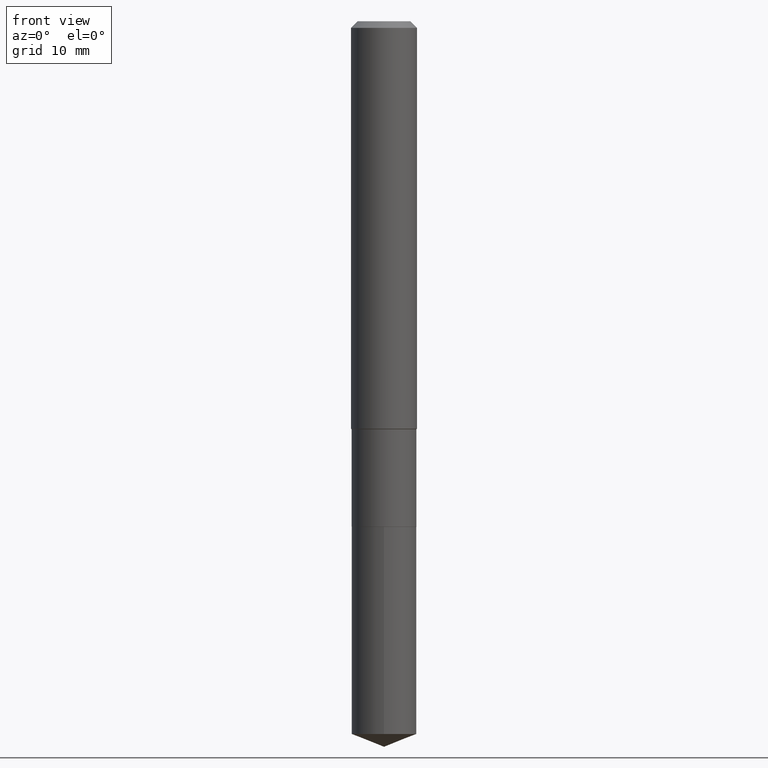
[diagram: clean part render]
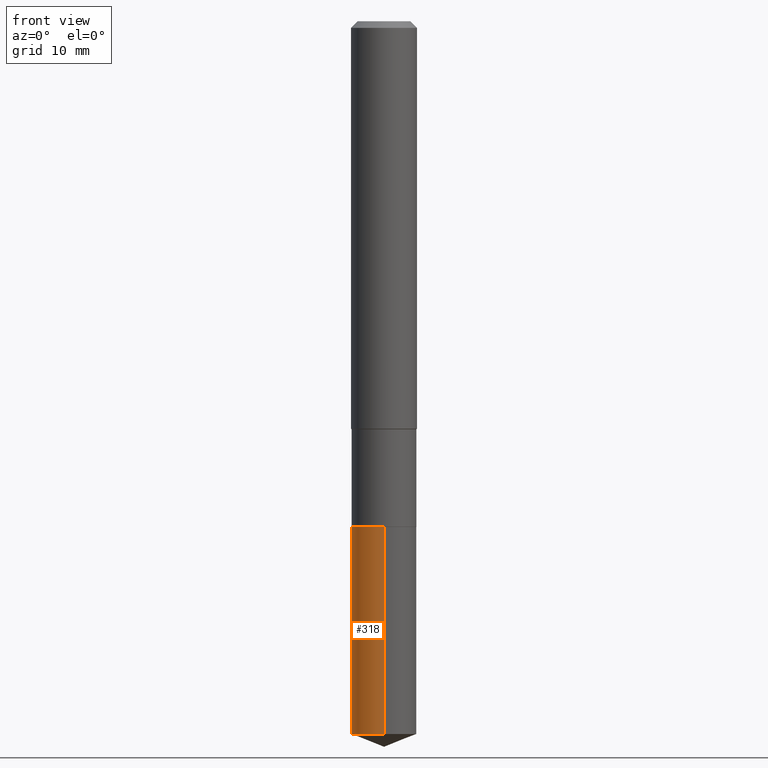
[diagram: same view with one face highlighted and labeled with its STEP entity id]
A machine part, front view. The second image highlights one B-rep face of the part: STEP entity #318.
In plain terms, the highlighted cylindrical surface (edge-blend (fillet) strip) has radius 2.9502 mm, axis along (-0, 0, 1).
Its self-contained STEP definition (entity closure, byte-faithful):
#2 = DIRECTION ( 'NONE',  ( -6.982962677686265922E-15, -1.000000000000000000, 2.351999994545211393E-15 ) ) ;
#19 = CIRCLE ( 'NONE', #487, 0.1161500000000000032 ) ;
#24 = ORIENTED_EDGE ( 'NONE', *, *, #470, .F. ) ;
#27 = DIRECTION ( 'NONE',  ( -2.445580598395875501E-29, 3.491321246034550326E-15, 1.000000000000000000 ) ) ;
#36 = ORIENTED_EDGE ( 'NONE', *, *, #454, .F. ) ;
#54 = CIRCLE ( 'NONE', #163, 0.1161500000000000032 ) ;
#83 = VECTOR ( 'NONE', #105, 39.37007874015748143 ) ;
#88 = CARTESIAN_POINT ( 'NONE',  ( -8.110711150131975245E-16, -0.1161500000000089128, -2.552647298257324060 ) ) ;
#100 = EDGE_CURVE ( 'NONE', #153, #436, #479, .T. ) ;
#105 = DIRECTION ( 'NONE',  ( -2.445580598395875221E-29, 3.491321246034550326E-15, 1.000000000000000000 ) ) ;
#109 = ORIENTED_EDGE ( 'NONE', *, *, #352, .T. ) ;
#127 = CARTESIAN_POINT ( 'NONE',  ( 4.428744008001282238E-29, -6.323072704644935995E-15, -1.810999999999999943 ) ) ;
#138 = CARTESIAN_POINT ( 'NONE',  ( 8.252953875854189062E-16, 0.1161499999999936888, -1.811000000000000165 ) ) ;
#148 = LINE ( 'NONE', #294, #83 ) ;
#153 = VERTEX_POINT ( 'NONE', #88 ) ;
#158 = DIRECTION ( 'NONE',  ( -2.445580598395875501E-29, 3.491321246034550326E-15, 1.000000000000000000 ) ) ;
#163 = AXIS2_PLACEMENT_3D ( 'NONE', #225, #158, #190 ) ;
#190 = DIRECTION ( 'NONE',  ( -6.982962677686265922E-15, -1.000000000000000000, 4.703999989090422785E-15 ) ) ;
#193 = EDGE_LOOP ( 'NONE', ( #36, #109, #330, #24 ) ) ;
#211 = FACE_OUTER_BOUND ( 'NONE', #193, .T. ) ;
#225 = CARTESIAN_POINT ( 'NONE',  ( 6.242502251472113961E-29, -8.912401674114856176E-15, -2.552647298257324504 ) ) ;
#294 = CARTESIAN_POINT ( 'NONE',  ( 8.252953875854005651E-16, 0.1161499999999936888, -1.811000000000000165 ) ) ;
#295 = VECTOR ( 'NONE', #482, 39.37007874015748143 ) ;
#318 = ADVANCED_FACE ( 'NONE', ( #211 ), #433, .T. ) ;
#320 = VERTEX_POINT ( 'NONE', #138 ) ;
#330 = ORIENTED_EDGE ( 'NONE', *, *, #100, .T. ) ;
#333 = CARTESIAN_POINT ( 'NONE',  ( -8.110711150132155697E-16, -0.1161500000000063176, -1.810999999999999721 ) ) ;
#341 = DIRECTION ( 'NONE',  ( -2.445580598395875501E-29, 3.491321246034550326E-15, 1.000000000000000000 ) ) ;
#352 = EDGE_CURVE ( 'NONE', #472, #153, #54, .T. ) ;
#353 = CARTESIAN_POINT ( 'NONE',  ( 4.428744008001282238E-29, -6.323072704644935995E-15, -1.810999999999999943 ) ) ;
#400 = AXIS2_PLACEMENT_3D ( 'NONE', #353, #27, #476 ) ;
#406 = CARTESIAN_POINT ( 'NONE',  ( -8.110711150132155697E-16, -0.1161500000000063176, -1.810999999999999721 ) ) ;
#420 = CARTESIAN_POINT ( 'NONE',  ( 8.252953875854189062E-16, 0.1161499999999911215, -2.552647298257324948 ) ) ;
#433 = CYLINDRICAL_SURFACE ( 'NONE', #400, 0.1161500000000000032 ) ;
#436 = VERTEX_POINT ( 'NONE', #333 ) ;
#454 = EDGE_CURVE ( 'NONE', #472, #320, #148, .T. ) ;
#470 = EDGE_CURVE ( 'NONE', #320, #436, #19, .T. ) ;
#472 = VERTEX_POINT ( 'NONE', #420 ) ;
#476 = DIRECTION ( 'NONE',  ( -6.982962677686265922E-15, -1.000000000000000000, 2.351999994545211393E-15 ) ) ;
#479 = LINE ( 'NONE', #406, #295 ) ;
#482 = DIRECTION ( 'NONE',  ( -2.445580598395875221E-29, 3.491321246034550326E-15, 1.000000000000000000 ) ) ;
#487 = AXIS2_PLACEMENT_3D ( 'NONE', #127, #341, #2 ) ;